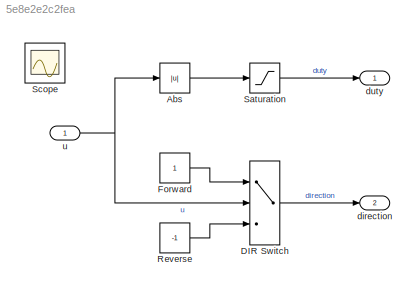
MODEL slx_5e8e2e2c2fea
KIND model
CONFIG AbsTol = auto
CONFIG EnableMultiTasking = on
CONFIG FixedStep = auto
CONFIG MaxStep = auto
CONFIG MinStep = auto
CONFIG PreLoadFcn = etc_logic_data;
CONFIG RelTol = 1e-3
CONFIG SampleTimeConstraint = Unconstrained
CONFIG Solver = VariableStepDiscrete
CONFIG SolverName = VariableStepDiscrete
CONFIG StartTime = 0.0
CONFIG StopTime = 10.0
BLOCK [Outport]  direction
  IconDisplay = Port number
  Port = 2
BLOCK [Abs] Abs
  SaturateOnIntegerOverflow = off
BLOCK [Switch] DIR Switch
  AttributesFormatString = Criteria: %<Criteria>\nThreshold: %<Threshold>
  InputSameDT = off
  SaturateOnIntegerOverflow = off
BLOCK [Constant] Forward
  OutDataTypeStr = double
BLOCK [Constant] Reverse
  OutDataTypeStr = double
  Value = -1
BLOCK [Saturate] Saturation
  AttributesFormatString = %<LowerLimit> < duty < %<UpperLimit>
  InputPortMap = u0
  LowerLimit = 0
  Ports = [1, 1]
  UpperLimit = 1
BLOCK [Scope] Scope
  Floating = off
  IOType = viewer
  NumInputPorts = 1
  Ports = []
  ScopeSpecificationString = Simulink.scopes.TimeScopeBlockCfg('CurrentConfiguration', extmgr.ConfigurationSet(extmgr.Configuration('Core','General UI',true),extmgr.Configuration('Core','Source UI',true),extmgr.Configuration('Sources','WiredSimulink',true,'DataLoggingMaxPoints','7500','DataLoggingLimitDataPoints',true,'DataLoggingSaveFormat','Array','DataLoggingDecimation','1','DataLoggingDecimateData',true),extmgr.Configurat...<+2770ch>
BLOCK [Outport] duty 
  IconDisplay = Port number
BLOCK [Inport] u
  IconDisplay = Port number
LINE Abs:1 -> Saturation:1
LINE DIR Switch:1 ->  direction:1
LINE Forward:1 -> DIR Switch:1
LINE Reverse:1 -> DIR Switch:3
LINE Saturation:1 -> duty :1
NET u:1 -> Abs:1, DIR Switch:2
note: NET lines group one-source signal fan-out (src -> all destinations, sorted); 1:1 wires keep LINE
